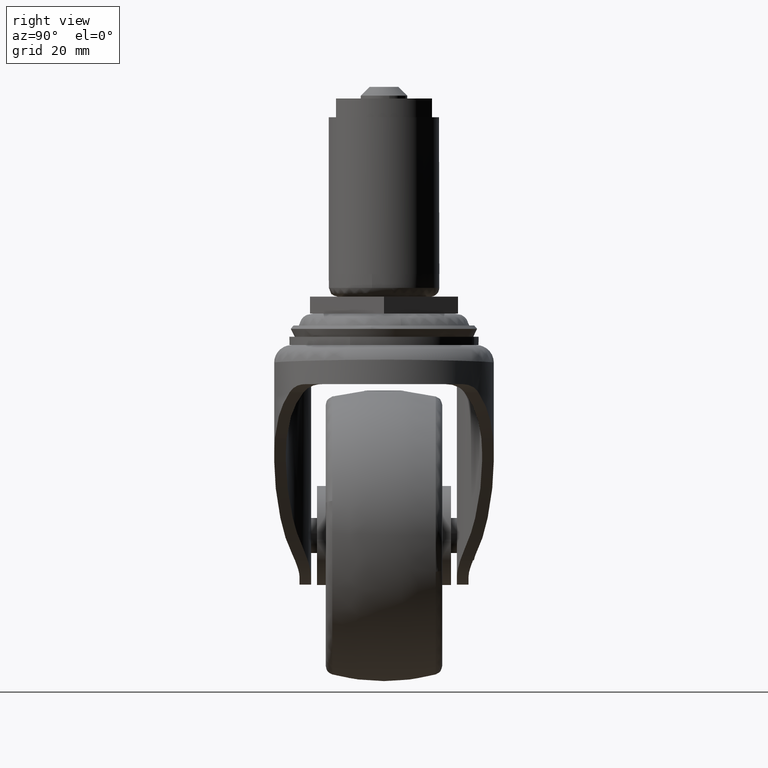
[diagram: clean part render]
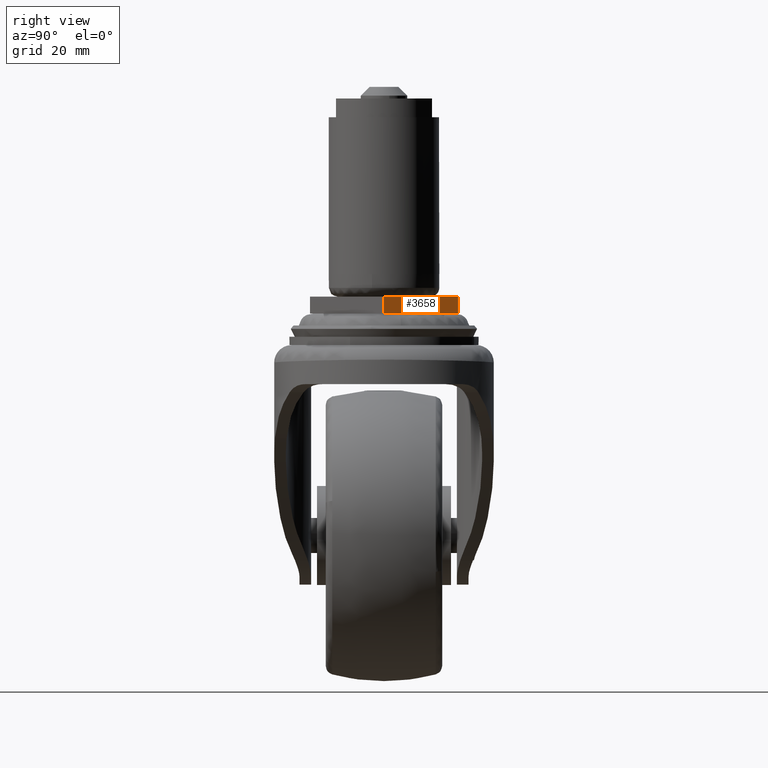
[diagram: same view with one face highlighted and labeled with its STEP entity id]
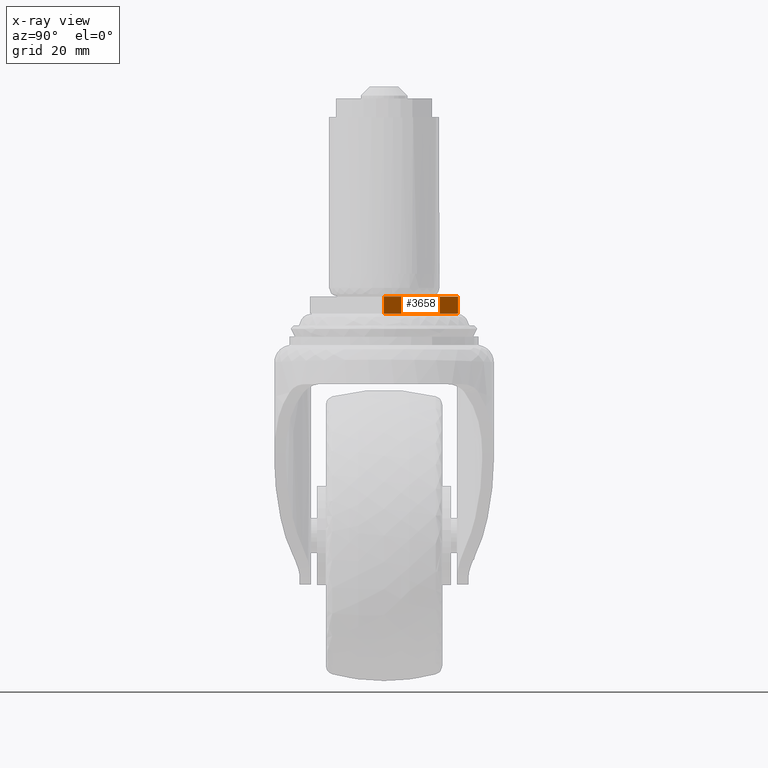
[diagram: x-ray of the same camera — body ghosted, the highlighted face saturated]
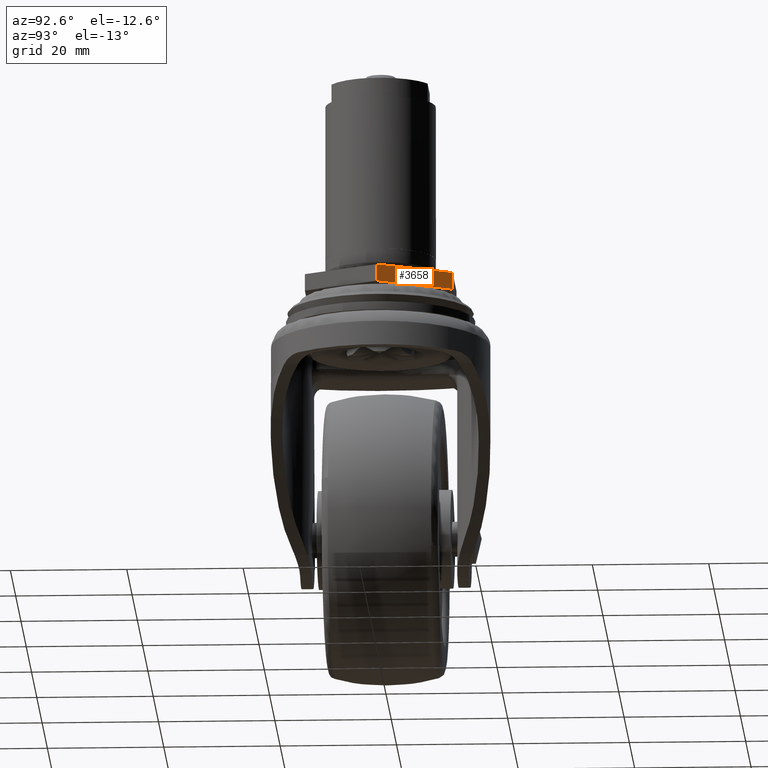
[diagram: same view with one face highlighted and labeled with its STEP entity id]
A machine part, right view. The second image highlights one B-rep face of the part: STEP entity #3658.
The next image is the same camera in x-ray: the body ghosted, the highlighted face saturated — about 0% of this face is hidden behind the body in this view.
A second angle (auxiliary view) of the same face is appended — the face is thin or edge-on in the first view.
In plain terms, the highlighted face is a freeform B-spline surface patch.
Its self-contained STEP definition (entity closure, byte-faithful):
#3623=CARTESIAN_POINT('',(15.026133485793030,-0.634161778792820,-3.044843336037172));
#3624=CARTESIAN_POINT('',(6.963866317601125,13.330094119324260,-3.044843336037172));
#3625=CARTESIAN_POINT('',(15.026133485793030,-0.634161778792820,0.144854517532626));
#3626=CARTESIAN_POINT('',(6.963866317601125,13.330094119324260,0.144854517532626));
#3627=B_SPLINE_SURFACE_WITH_KNOTS('',1,1,((#3623,#3625),(#3624,#3626)),.UNSPECIFIED.,.F.,.F.,.U.,(2,2),(2,2),(0.0,16.124533936812028),(0.0,3.189697853569798),.UNSPECIFIED.);
#3628=CARTESIAN_POINT('',(14.660000000000000,0.0,0.0));
#3629=VERTEX_POINT('',#3628);
#3630=CARTESIAN_POINT('',(7.330000000000000,12.695931999999960,0.0));
#3631=VERTEX_POINT('',#3630);
#3632=CARTESIAN_POINT('',(14.660000000000000,0.0,0.0));
#3633=CARTESIAN_POINT('',(7.330000000000000,12.695931999999960,0.0));
#3634=QUASI_UNIFORM_CURVE('',1,(#3632,#3633),.UNSPECIFIED.,.F.,.U.);
#3635=EDGE_CURVE('',#3629,#3631,#3634,.T.);
#3636=ORIENTED_EDGE('',*,*,#3635,.F.);
#3637=CARTESIAN_POINT('',(14.660000000000000,0.0,-2.899989000000000));
#3638=VERTEX_POINT('',#3637);
#3639=CARTESIAN_POINT('',(14.660000000000000,0.0,-2.899989000000000));
#3640=CARTESIAN_POINT('',(14.660000000000000,0.0,0.0));
#3641=QUASI_UNIFORM_CURVE('',1,(#3639,#3640),.UNSPECIFIED.,.F.,.U.);
#3642=EDGE_CURVE('',#3638,#3629,#3641,.T.);
#3643=ORIENTED_EDGE('',*,*,#3642,.F.);
#3644=CARTESIAN_POINT('',(7.330000000000000,12.695931999999960,-2.899989000000000));
#3645=VERTEX_POINT('',#3644);
#3646=CARTESIAN_POINT('',(14.660000000000000,0.0,-2.899989000000000));
#3647=CARTESIAN_POINT('',(7.330000000000000,12.695931999999960,-2.899989000000000));
#3648=QUASI_UNIFORM_CURVE('',1,(#3646,#3647),.UNSPECIFIED.,.F.,.U.);
#3649=EDGE_CURVE('',#3638,#3645,#3648,.T.);
#3650=ORIENTED_EDGE('',*,*,#3649,.T.);
#3651=CARTESIAN_POINT('',(7.330000000000000,12.695931999999960,-2.899989000000000));
#3652=CARTESIAN_POINT('',(7.330000000000000,12.695931999999960,0.0));
#3653=QUASI_UNIFORM_CURVE('',1,(#3651,#3652),.UNSPECIFIED.,.F.,.U.);
#3654=EDGE_CURVE('',#3645,#3631,#3653,.T.);
#3655=ORIENTED_EDGE('',*,*,#3654,.T.);
#3656=EDGE_LOOP('',(#3636,#3643,#3650,#3655));
#3657=FACE_OUTER_BOUND('',#3656,.T.);
#3658=ADVANCED_FACE('',(#3657),#3627,.T.);